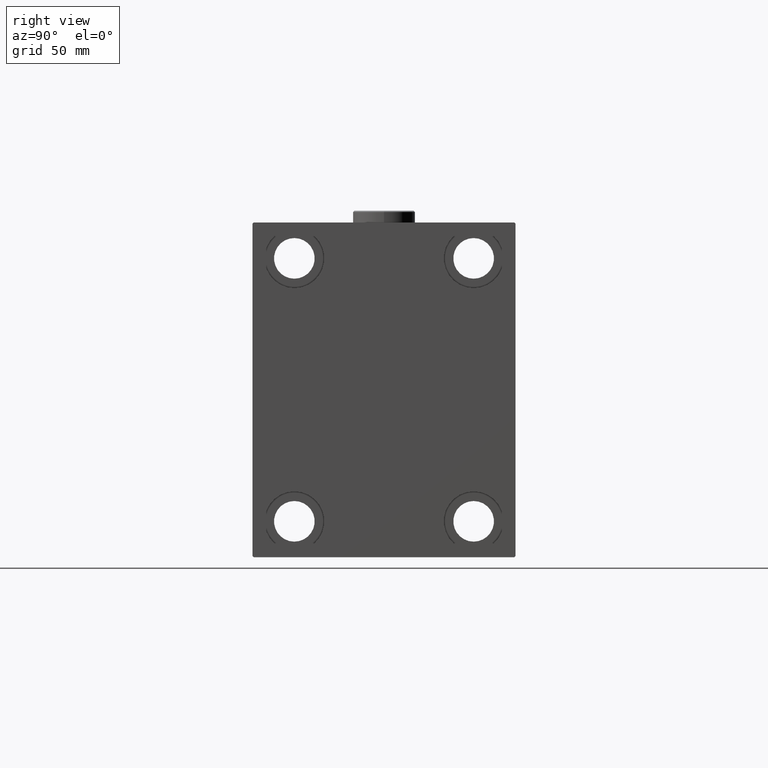
[diagram: clean part render]
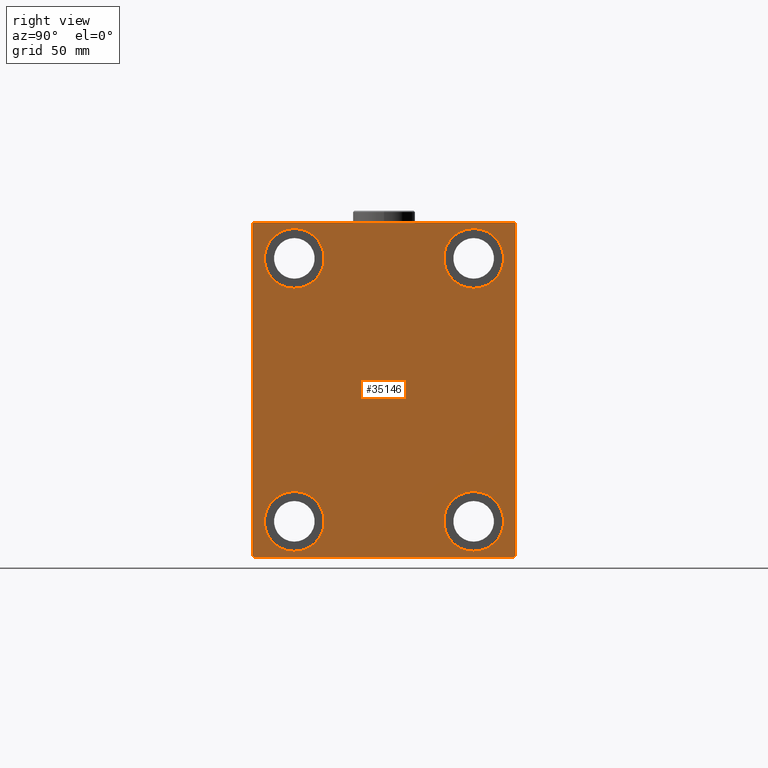
[diagram: same view with one face highlighted and labeled with its STEP entity id]
A machine part, right view. The second image highlights one B-rep face of the part: STEP entity #35146.
In plain terms, the highlighted planar face has unit normal (1, 0, 0).
Its self-contained STEP definition (entity closure, byte-faithful):
#243 = ORIENTED_EDGE ( 'NONE', *, *, #15826, .T. ) ;
#653 = VECTOR ( 'NONE', #45217, 1000.000000000000114 ) ;
#829 = CARTESIAN_POINT ( 'NONE',  ( 173.0000000000000000, 37.50000000000000711, 55.00000000000000711 ) ) ;
#1005 = ORIENTED_EDGE ( 'NONE', *, *, #25797, .T. ) ;
#1019 = DIRECTION ( 'NONE',  ( -1.000000000000000000, -0.000000000000000000, -0.000000000000000000 ) ) ;
#1420 = VERTEX_POINT ( 'NONE', #37556 ) ;
#1435 = CARTESIAN_POINT ( 'NONE',  ( 173.0000000000000000, -37.50000000000002132, -54.99999999999999289 ) ) ;
#1734 = CIRCLE ( 'NONE', #30645, 12.49999999999999645 ) ;
#2076 = CARTESIAN_POINT ( 'NONE',  ( 173.0000000000000000, 54.49999999999999289, -70.00000000000000000 ) ) ;
#3220 = CARTESIAN_POINT ( 'NONE',  ( 173.0000000000000000, -37.50000000000002132, -42.49999999999999289 ) ) ;
#3759 = CIRCLE ( 'NONE', #30361, 12.49999999999999645 ) ;
#3832 = EDGE_CURVE ( 'NONE', #32680, #20025, #44722, .T. ) ;
#4147 = DIRECTION ( 'NONE',  ( 0.000000000000000000, 0.000000000000000000, 1.000000000000000000 ) ) ;
#4204 = EDGE_LOOP ( 'NONE', ( #13632, #19290 ) ) ;
#4263 = LINE ( 'NONE', #37082, #37015 ) ;
#5179 = EDGE_CURVE ( 'NONE', #31704, #6228, #26353, .T. ) ;
#5529 = EDGE_LOOP ( 'NONE', ( #29158, #41030 ) ) ;
#5581 = AXIS2_PLACEMENT_3D ( 'NONE', #829, #7961, #16048 ) ;
#5826 = CARTESIAN_POINT ( 'NONE',  ( 173.0000000000000000, -54.49999999999997868, -70.00000000000002842 ) ) ;
#6002 = CARTESIAN_POINT ( 'NONE',  ( 173.0000000000000000, -37.50000000000002132, -67.49999999999998579 ) ) ;
#6228 = VERTEX_POINT ( 'NONE', #21342 ) ;
#6368 = FACE_BOUND ( 'NONE', #7086, .T. ) ;
#6394 = LINE ( 'NONE', #28030, #18889 ) ;
#6410 = CARTESIAN_POINT ( 'NONE',  ( 173.0000000000000000, -37.50000000000000711, 55.00000000000000711 ) ) ;
#6752 = CARTESIAN_POINT ( 'NONE',  ( 173.0000000000000000, 37.49999999999997868, -42.49999999999999289 ) ) ;
#6758 = VERTEX_POINT ( 'NONE', #6752 ) ;
#6796 = DIRECTION ( 'NONE',  ( -1.000000000000000000, -0.000000000000000000, -0.000000000000000000 ) ) ;
#7086 = EDGE_LOOP ( 'NONE', ( #45603, #35616 ) ) ;
#7839 = VECTOR ( 'NONE', #20722, 999.9999999999998863 ) ;
#7859 = DIRECTION ( 'NONE',  ( -1.000000000000000000, -0.000000000000000000, -0.000000000000000000 ) ) ;
#7961 = DIRECTION ( 'NONE',  ( -1.000000000000000000, -0.000000000000000000, -0.000000000000000000 ) ) ;
#8822 = DIRECTION ( 'NONE',  ( 0.000000000000000000, 0.000000000000000000, 1.000000000000000000 ) ) ;
#9015 = EDGE_CURVE ( 'NONE', #15181, #6758, #42180, .T. ) ;
#9082 = VECTOR ( 'NONE', #29472, 1000.000000000000114 ) ;
#9176 = CARTESIAN_POINT ( 'NONE',  ( 173.0000000000000000, 37.50000000000000711, 42.50000000000000711 ) ) ;
#9493 = ORIENTED_EDGE ( 'NONE', *, *, #13448, .T. ) ;
#9631 = CIRCLE ( 'NONE', #28600, 12.49999999999999645 ) ;
#10250 = DIRECTION ( 'NONE',  ( 0.000000000000000000, 0.000000000000000000, 1.000000000000000000 ) ) ;
#10704 = CARTESIAN_POINT ( 'NONE',  ( 173.0000000000000000, -37.50000000000002132, -54.99999999999999289 ) ) ;
#11842 = EDGE_CURVE ( 'NONE', #45835, #36647, #45257, .T. ) ;
#12426 = ORIENTED_EDGE ( 'NONE', *, *, #18828, .T. ) ;
#12685 = DIRECTION ( 'NONE',  ( 0.000000000000000000, -1.982541115402065110E-16, 1.000000000000000000 ) ) ;
#13278 = CARTESIAN_POINT ( 'NONE',  ( 173.0000000000000000, -54.50000000000000711, 69.99999999999998579 ) ) ;
#13448 = EDGE_CURVE ( 'NONE', #16952, #1420, #9631, .T. ) ;
#13521 = FACE_BOUND ( 'NONE', #5529, .T. ) ;
#13529 = CARTESIAN_POINT ( 'NONE',  ( 173.0000000000000000, 37.50000000000000711, 67.50000000000000000 ) ) ;
#13632 = ORIENTED_EDGE ( 'NONE', *, *, #42537, .T. ) ;
#13785 = EDGE_LOOP ( 'NONE', ( #1005, #9493 ) ) ;
#14405 = DIRECTION ( 'NONE',  ( 0.000000000000000000, 0.000000000000000000, 1.000000000000000000 ) ) ;
#14744 = EDGE_CURVE ( 'NONE', #6228, #19897, #44788, .T. ) ;
#15181 = VERTEX_POINT ( 'NONE', #29952 ) ;
#15570 = CARTESIAN_POINT ( 'NONE',  ( 173.0000000000000000, -37.50000000000000711, 55.00000000000000711 ) ) ;
#15826 = EDGE_CURVE ( 'NONE', #34140, #35700, #4263, .T. ) ;
#16048 = DIRECTION ( 'NONE',  ( 0.000000000000000000, 0.000000000000000000, 1.000000000000000000 ) ) ;
#16952 = VERTEX_POINT ( 'NONE', #18943 ) ;
#17080 = CARTESIAN_POINT ( 'NONE',  ( 173.0000000000000000, 54.49999999999996447, 70.00000000000000000 ) ) ;
#17766 = CIRCLE ( 'NONE', #5581, 12.49999999999999645 ) ;
#18452 = ORIENTED_EDGE ( 'NONE', *, *, #14744, .T. ) ;
#18792 = LINE ( 'NONE', #33534, #38718 ) ;
#18828 = EDGE_CURVE ( 'NONE', #34189, #34140, #6394, .T. ) ;
#18889 = VECTOR ( 'NONE', #35414, 1000.000000000000000 ) ;
#18943 = CARTESIAN_POINT ( 'NONE',  ( 173.0000000000000000, -37.50000000000000711, 67.50000000000000000 ) ) ;
#19287 = EDGE_CURVE ( 'NONE', #19897, #34189, #23583, .T. ) ;
#19290 = ORIENTED_EDGE ( 'NONE', *, *, #3832, .T. ) ;
#19392 = ORIENTED_EDGE ( 'NONE', *, *, #38702, .T. ) ;
#19474 = CARTESIAN_POINT ( 'NONE',  ( 173.0000000000000000, 62.25000000000000000, -62.25000000000000000 ) ) ;
#19897 = VERTEX_POINT ( 'NONE', #40355 ) ;
#20025 = VERTEX_POINT ( 'NONE', #9176 ) ;
#20722 = DIRECTION ( 'NONE',  ( -0.000000000000000000, 0.7071067811865574537, -0.7071067811865376918 ) ) ;
#21122 = FACE_BOUND ( 'NONE', #13785, .T. ) ;
#21160 = DIRECTION ( 'NONE',  ( 0.000000000000000000, 0.000000000000000000, 1.000000000000000000 ) ) ;
#21342 = CARTESIAN_POINT ( 'NONE',  ( 173.0000000000000000, 55.00000000000002132, -69.49999999999997158 ) ) ;
#21472 = EDGE_CURVE ( 'NONE', #35700, #26983, #18792, .T. ) ;
#23255 = CARTESIAN_POINT ( 'NONE',  ( 173.0000000000000000, -55.00000000000000711, -69.50000000000001421 ) ) ;
#23320 = ORIENTED_EDGE ( 'NONE', *, *, #27807, .T. ) ;
#23583 = LINE ( 'NONE', #34527, #653 ) ;
#23739 = ORIENTED_EDGE ( 'NONE', *, *, #21472, .T. ) ;
#24680 = CARTESIAN_POINT ( 'NONE',  ( 173.0000000000000000, 0.000000000000000000, 0.000000000000000000 ) ) ;
#24750 = DIRECTION ( 'NONE',  ( -1.000000000000000000, -0.000000000000000000, -0.000000000000000000 ) ) ;
#25175 = EDGE_LOOP ( 'NONE', ( #12426, #243, #23739, #19392, #23320, #34032, #18452, #37693 ) ) ;
#25199 = AXIS2_PLACEMENT_3D ( 'NONE', #1435, #30936, #8822 ) ;
#25797 = EDGE_CURVE ( 'NONE', #1420, #16952, #3759, .T. ) ;
#26353 = LINE ( 'NONE', #19474, #9082 ) ;
#26690 = DIRECTION ( 'NONE',  ( 0.000000000000000000, 0.000000000000000000, 1.000000000000000000 ) ) ;
#26983 = VERTEX_POINT ( 'NONE', #23255 ) ;
#27807 = EDGE_CURVE ( 'NONE', #37288, #31704, #30748, .T. ) ;
#28004 = FACE_OUTER_BOUND ( 'NONE', #25175, .T. ) ;
#28030 = CARTESIAN_POINT ( 'NONE',  ( 173.0000000000000000, 54.99999999999999289, 70.00000000000000000 ) ) ;
#28600 = AXIS2_PLACEMENT_3D ( 'NONE', #15570, #29374, #4147 ) ;
#28667 = CARTESIAN_POINT ( 'NONE',  ( 173.0000000000000000, 37.49999999999997868, -54.99999999999999289 ) ) ;
#29158 = ORIENTED_EDGE ( 'NONE', *, *, #31361, .T. ) ;
#29374 = DIRECTION ( 'NONE',  ( -1.000000000000000000, -0.000000000000000000, -0.000000000000000000 ) ) ;
#29472 = DIRECTION ( 'NONE',  ( -0.000000000000000000, 0.7071067811865474617, 0.7071067811865474617 ) ) ;
#29578 = CARTESIAN_POINT ( 'NONE',  ( 173.0000000000000000, 37.50000000000000711, 55.00000000000000711 ) ) ;
#29952 = CARTESIAN_POINT ( 'NONE',  ( 173.0000000000000000, 37.49999999999997868, -67.49999999999998579 ) ) ;
#30301 = AXIS2_PLACEMENT_3D ( 'NONE', #29578, #1019, #26690 ) ;
#30361 = AXIS2_PLACEMENT_3D ( 'NONE', #6410, #32097, #21160 ) ;
#30525 = CARTESIAN_POINT ( 'NONE',  ( 173.0000000000000000, 55.00000000000002132, -70.00000000000000000 ) ) ;
#30645 = AXIS2_PLACEMENT_3D ( 'NONE', #28667, #6796, #14405 ) ;
#30748 = LINE ( 'NONE', #40976, #37250 ) ;
#30936 = DIRECTION ( 'NONE',  ( -1.000000000000000000, -0.000000000000000000, -0.000000000000000000 ) ) ;
#31361 = EDGE_CURVE ( 'NONE', #36647, #45835, #35840, .T. ) ;
#31590 = DIRECTION ( 'NONE',  ( 0.000000000000000000, 0.000000000000000000, -1.000000000000000000 ) ) ;
#31704 = VERTEX_POINT ( 'NONE', #2076 ) ;
#32097 = DIRECTION ( 'NONE',  ( -1.000000000000000000, -0.000000000000000000, -0.000000000000000000 ) ) ;
#32680 = VERTEX_POINT ( 'NONE', #13529 ) ;
#32848 = CARTESIAN_POINT ( 'NONE',  ( 173.0000000000000000, 37.49999999999997868, -54.99999999999999289 ) ) ;
#33527 = DIRECTION ( 'NONE',  ( 0.000000000000000000, -0.7071067811865474617, -0.7071067811865474617 ) ) ;
#33534 = CARTESIAN_POINT ( 'NONE',  ( 173.0000000000000000, -55.00000000000000711, 69.99999999999998579 ) ) ;
#33804 = AXIS2_PLACEMENT_3D ( 'NONE', #32848, #7859, #43079 ) ;
#34032 = ORIENTED_EDGE ( 'NONE', *, *, #5179, .T. ) ;
#34140 = VERTEX_POINT ( 'NONE', #13278 ) ;
#34189 = VERTEX_POINT ( 'NONE', #17080 ) ;
#34527 = CARTESIAN_POINT ( 'NONE',  ( 173.0000000000000000, 62.24999999999997868, 62.24999999999997868 ) ) ;
#35146 = ADVANCED_FACE ( 'NONE', ( #6368, #21122, #38468, #13521, #28004 ), #38951, .T. ) ;
#35222 = CARTESIAN_POINT ( 'NONE',  ( 173.0000000000000000, -62.24999999999924682, -62.25000000000098055 ) ) ;
#35274 = CARTESIAN_POINT ( 'NONE',  ( 173.0000000000000000, -55.00000000000000711, 69.49999999999998579 ) ) ;
#35387 = DIRECTION ( 'NONE',  ( 1.000000000000000000, 0.000000000000000000, 0.000000000000000000 ) ) ;
#35414 = DIRECTION ( 'NONE',  ( 0.000000000000000000, -1.000000000000000000, -1.261617073437677999E-16 ) ) ;
#35616 = ORIENTED_EDGE ( 'NONE', *, *, #42302, .T. ) ;
#35700 = VERTEX_POINT ( 'NONE', #35274 ) ;
#35840 = CIRCLE ( 'NONE', #25199, 12.49999999999999645 ) ;
#36647 = VERTEX_POINT ( 'NONE', #6002 ) ;
#36918 = AXIS2_PLACEMENT_3D ( 'NONE', #10704, #24750, #10250 ) ;
#37015 = VECTOR ( 'NONE', #33527, 1000.000000000000114 ) ;
#37082 = CARTESIAN_POINT ( 'NONE',  ( 173.0000000000000000, -62.25000000000000000, 62.25000000000000000 ) ) ;
#37090 = DIRECTION ( 'NONE',  ( 0.000000000000000000, 0.000000000000000000, -1.000000000000000000 ) ) ;
#37250 = VECTOR ( 'NONE', #45240, 1000.000000000000000 ) ;
#37288 = VERTEX_POINT ( 'NONE', #5826 ) ;
#37556 = CARTESIAN_POINT ( 'NONE',  ( 173.0000000000000000, -37.50000000000000711, 42.50000000000000711 ) ) ;
#37693 = ORIENTED_EDGE ( 'NONE', *, *, #19287, .T. ) ;
#38468 = FACE_BOUND ( 'NONE', #4204, .T. ) ;
#38545 = LINE ( 'NONE', #35222, #7839 ) ;
#38702 = EDGE_CURVE ( 'NONE', #26983, #37288, #38545, .T. ) ;
#38718 = VECTOR ( 'NONE', #37090, 1000.000000000000000 ) ;
#38951 = PLANE ( 'NONE',  #45800 ) ;
#40355 = CARTESIAN_POINT ( 'NONE',  ( 173.0000000000000000, 54.99999999999999289, 69.49999999999997158 ) ) ;
#40976 = CARTESIAN_POINT ( 'NONE',  ( 173.0000000000000000, -55.00000000000000711, -70.00000000000002842 ) ) ;
#41030 = ORIENTED_EDGE ( 'NONE', *, *, #11842, .T. ) ;
#42180 = CIRCLE ( 'NONE', #33804, 12.49999999999999645 ) ;
#42302 = EDGE_CURVE ( 'NONE', #6758, #15181, #1734, .T. ) ;
#42537 = EDGE_CURVE ( 'NONE', #20025, #32680, #17766, .T. ) ;
#43079 = DIRECTION ( 'NONE',  ( 0.000000000000000000, 0.000000000000000000, 1.000000000000000000 ) ) ;
#43846 = VECTOR ( 'NONE', #12685, 1000.000000000000000 ) ;
#44722 = CIRCLE ( 'NONE', #30301, 12.49999999999999645 ) ;
#44788 = LINE ( 'NONE', #30525, #43846 ) ;
#45217 = DIRECTION ( 'NONE',  ( -0.000000000000000000, -0.7071067811865474617, 0.7071067811865474617 ) ) ;
#45240 = DIRECTION ( 'NONE',  ( 0.000000000000000000, 1.000000000000000000, 2.523234146875355012E-16 ) ) ;
#45257 = CIRCLE ( 'NONE', #36918, 12.49999999999999645 ) ;
#45603 = ORIENTED_EDGE ( 'NONE', *, *, #9015, .T. ) ;
#45800 = AXIS2_PLACEMENT_3D ( 'NONE', #24680, #35387, #31590 ) ;
#45835 = VERTEX_POINT ( 'NONE', #3220 ) ;